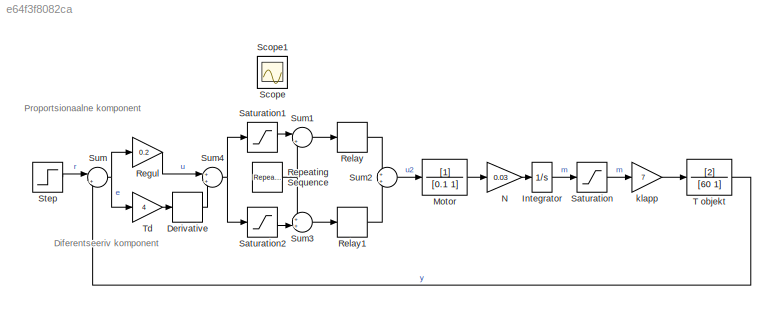
MODEL slx_e64f3f8082ca
KIND model
CONFIG AbsTol = auto
CONFIG EnableMultiTasking = on
CONFIG FixedStep = auto
CONFIG MaxStep = auto
CONFIG MinStep = auto
CONFIG RelTol = 1e-3
CONFIG SampleTimeConstraint = Unconstrained
CONFIG SolverName = ode45
CONFIG StartTime = 0.0
CONFIG StopTime = 500.0
BLOCK [Derivative] Derivative
BLOCK [Integrator] Integrator
  Ports = [1, 1]
BLOCK [TransferFcn] Motor
  Denominator = [0.1 1]
BLOCK [Gain] N
  Gain = 0.03
BLOCK [Gain] Regul
  Gain = 0.2
BLOCK [Relay] Relay
  OffSwitchValue = -0.1
  OnOutputValue = 10
  OnSwitchValue = 0
BLOCK [Relay] Relay1
  OffOutputValue = -10
  OffSwitchValue = -0.1
  OnOutputValue = 0
  OnSwitchValue = 0
BLOCK [Reference] Repeating Sequence  REF=simulink/Sources/Repeating
Sequence
  Ports = [0, 1]
  SourceBlock = simulink/Sources/Repeating\nSequence
  SourceProductBaseCode = SL
  SourceType = Repeating table
BLOCK [Saturate] Saturation
  LowerLimit = 0
  UpperLimit = 10
BLOCK [Saturate] Saturation1
  LowerLimit = 0
  UpperLimit = 10
BLOCK [Saturate] Saturation2
  LowerLimit = -10
  UpperLimit = 0
BLOCK [Scope] Scope
  Floating = off
  IOType = viewer
  NumInputPorts = 1
  Ports = []
  ScopeSpecificationString = Simulink.scopes.TimeScopeBlockCfg('CurrentConfiguration', extmgr.ConfigurationSet(extmgr.Configuration('Core','General UI',true),extmgr.Configuration('Core','Source UI',true),extmgr.Configuration('Sources','WiredSimulink',true),extmgr.Configuration('Visuals','Time Domain',true,'SerializedDisplays',{struct('MinYLimReal','-13.125','MaxYLimReal','18.125','YLabelReal','','MinYLimMag','0.00000','MaxYLi...<+2294ch>
BLOCK [Scope] Scope1
  Floating = off
  IOType = viewer
  NumInputPorts = 1
  Ports = []
  ScopeSpecificationString = Simulink.scopes.TimeScopeBlockCfg('CurrentConfiguration', extmgr.ConfigurationSet(extmgr.Configuration('Core','General UI',true),extmgr.Configuration('Core','Source UI',true),extmgr.Configuration('Sources','WiredSimulink',true,'DataLoggingVariableName','ScopeData1'),extmgr.Configuration('Visuals','Time Domain',true,'SerializedDisplays',{struct('MinYLimReal','-12.6125','MaxYLimReal','12.5125','YLab...<+1810ch>
BLOCK [Step] Step
  After = 50
  SampleTime = 0
  Time = 0
BLOCK [Sum] Sum
  Inputs = |+-
  Ports = [2, 1]
BLOCK [Sum] Sum1
  Inputs = |+-
  Ports = [2, 1]
BLOCK [Sum] Sum2
  Ports = [2, 1]
BLOCK [Sum] Sum3
  Inputs = ++|
  Ports = [2, 1]
BLOCK [Sum] Sum4
  Ports = [2, 1]
BLOCK [TransferFcn] T objekt
  Denominator = [60 1]
  Numerator = [2]
BLOCK [Gain] Td
  Gain = 4
BLOCK [Gain] klapp
  Gain = 7
ANNOTATION (root): Diferentseeriv komponent
ANNOTATION (root): Proportsionaalne komponent
LINE Derivative:1 -> Sum4:2
LINE Integrator:1 -> Saturation:1
LINE Motor:1 -> N:1
LINE N:1 -> Integrator:1
LINE Regul:1 -> Sum4:1
LINE Relay1:1 -> Sum2:2
LINE Relay:1 -> Sum2:1
NET Repeating Sequence:1 -> Sum1:2, Sum3:1
LINE Saturation1:1 -> Sum1:1
LINE Saturation2:1 -> Sum3:2
LINE Saturation:1 -> klapp:1
LINE Step:1 -> Sum:1
LINE Sum1:1 -> Relay:1
LINE Sum2:1 -> Motor:1
LINE Sum3:1 -> Relay1:1
NET Sum4:1 -> Saturation1:1, Saturation2:1
NET Sum:1 -> Regul:1, Td:1
LINE T objekt:1 -> Sum:2
LINE Td:1 -> Derivative:1
LINE klapp:1 -> T objekt:1
note: NET lines group one-source signal fan-out (src -> all destinations, sorted); 1:1 wires keep LINE
